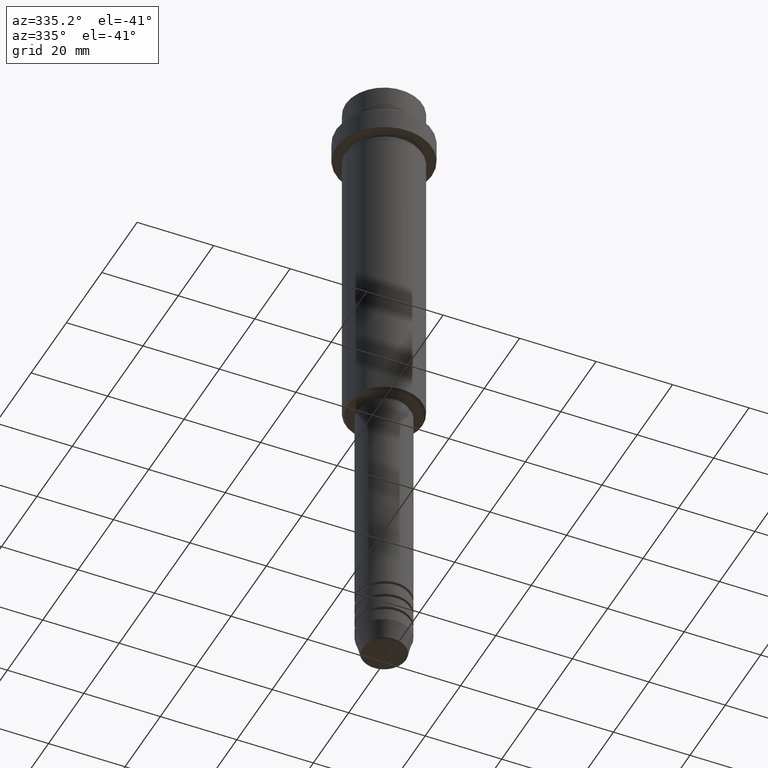
[diagram: clean part render]
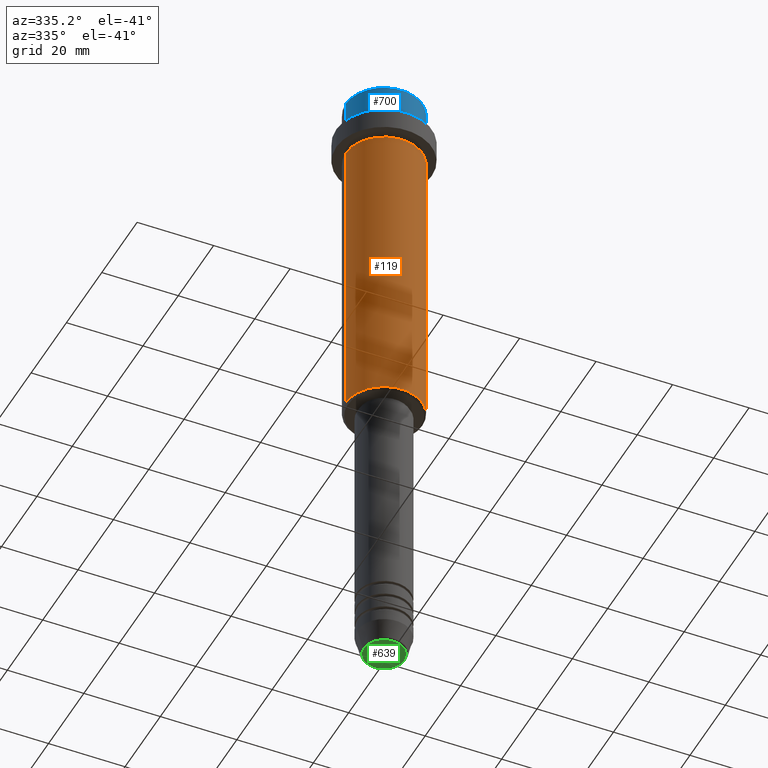
[diagram: same view with three faces highlighted in distinct colors, each labeled with its STEP entity id]
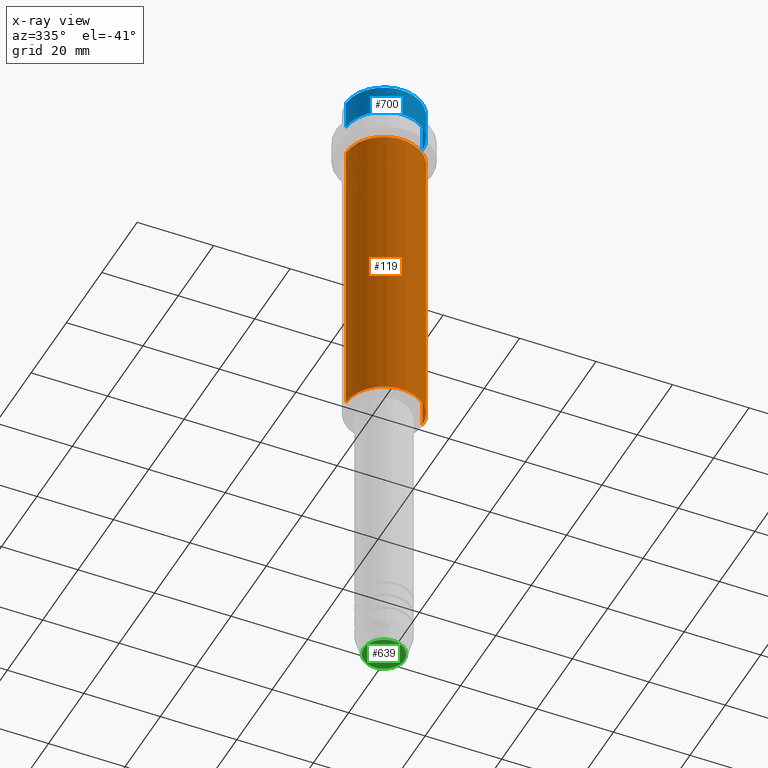
[diagram: x-ray of the same camera — body ghosted, the three highlighted faces saturated]
A machine part, auxiliary view with three faces highlighted in distinct colors.
The next image is the same camera in x-ray (body ghosted, the three faces saturated) — at least one of them is partly hidden behind the body in this view.
Their STEP definitions:

[orange] entity #119 — the highlighted cylindrical surface (partial cylindrical patch) has radius 10 mm, axis along (-0, -0, 1).
#48 = VERTEX_POINT ( 'NONE', #396 ) ;
#65 = ORIENTED_EDGE ( 'NONE', *, *, #490, .F. ) ;
#71 = LINE ( 'NONE', #166, #1163 ) ;
#77 = CARTESIAN_POINT ( 'NONE',  ( 0.000000000000000000, 0.000000000000000000, -16.00000000000000000 ) ) ;
#110 = LINE ( 'NONE', #864, #1141 ) ;
#119 = ADVANCED_FACE ( 'NONE', ( #499 ), #812, .T. ) ;
#166 = CARTESIAN_POINT ( 'NONE',  ( -10.00000000000000000, 1.224646799147353256E-15, 0.000000000000000000 ) ) ;
#227 = EDGE_CURVE ( 'NONE', #1382, #1175, #110, .T. ) ;
#276 = CARTESIAN_POINT ( 'NONE',  ( 0.000000000000000000, 0.000000000000000000, 0.000000000000000000 ) ) ;
#396 = CARTESIAN_POINT ( 'NONE',  ( -10.00000000000000000, 1.224646799147353256E-15, -94.49999999999997158 ) ) ;
#404 = CARTESIAN_POINT ( 'NONE',  ( -10.00000000000000000, 1.224646799147353256E-15, -16.00000000000000000 ) ) ;
#450 = CARTESIAN_POINT ( 'NONE',  ( 0.000000000000000000, 0.000000000000000000, -94.49999999999997158 ) ) ;
#490 = EDGE_CURVE ( 'NONE', #48, #1109, #71, .T. ) ;
#499 = FACE_OUTER_BOUND ( 'NONE', #1143, .T. ) ;
#513 = DIRECTION ( 'NONE',  ( -0.000000000000000000, -0.000000000000000000, 1.000000000000000000 ) ) ;
#520 = CARTESIAN_POINT ( 'NONE',  ( 10.00000000000000000, 0.000000000000000000, -16.00000000000000000 ) ) ;
#535 = DIRECTION ( 'NONE',  ( -0.000000000000000000, -0.000000000000000000, 1.000000000000000000 ) ) ;
#541 = AXIS2_PLACEMENT_3D ( 'NONE', #450, #675, #1122 ) ;
#579 = ORIENTED_EDGE ( 'NONE', *, *, #726, .T. ) ;
#599 = DIRECTION ( 'NONE',  ( -0.000000000000000000, -0.000000000000000000, 1.000000000000000000 ) ) ;
#614 = CIRCLE ( 'NONE', #541, 10.00000000000000000 ) ;
#675 = DIRECTION ( 'NONE',  ( -0.000000000000000000, -0.000000000000000000, 1.000000000000000000 ) ) ;
#721 = ORIENTED_EDGE ( 'NONE', *, *, #227, .T. ) ;
#726 = EDGE_CURVE ( 'NONE', #48, #1382, #614, .T. ) ;
#812 = CYLINDRICAL_SURFACE ( 'NONE', #1206, 10.00000000000000000 ) ;
#863 = DIRECTION ( 'NONE',  ( 1.000000000000000000, 0.000000000000000000, 0.000000000000000000 ) ) ;
#864 = CARTESIAN_POINT ( 'NONE',  ( 10.00000000000000000, 0.000000000000000000, 0.000000000000000000 ) ) ;
#947 = DIRECTION ( 'NONE',  ( -0.000000000000000000, -0.000000000000000000, 1.000000000000000000 ) ) ;
#954 = CARTESIAN_POINT ( 'NONE',  ( 10.00000000000000000, 0.000000000000000000, -94.49999999999997158 ) ) ;
#1019 = ORIENTED_EDGE ( 'NONE', *, *, #1084, .F. ) ;
#1039 = DIRECTION ( 'NONE',  ( 1.000000000000000000, 0.000000000000000000, 0.000000000000000000 ) ) ;
#1048 = AXIS2_PLACEMENT_3D ( 'NONE', #77, #513, #863 ) ;
#1084 = EDGE_CURVE ( 'NONE', #1109, #1175, #1296, .T. ) ;
#1109 = VERTEX_POINT ( 'NONE', #404 ) ;
#1122 = DIRECTION ( 'NONE',  ( -1.000000000000000000, 0.000000000000000000, 0.000000000000000000 ) ) ;
#1141 = VECTOR ( 'NONE', #535, 1000.000000000000000 ) ;
#1143 = EDGE_LOOP ( 'NONE', ( #65, #579, #721, #1019 ) ) ;
#1163 = VECTOR ( 'NONE', #947, 1000.000000000000000 ) ;
#1175 = VERTEX_POINT ( 'NONE', #520 ) ;
#1206 = AXIS2_PLACEMENT_3D ( 'NONE', #276, #599, #1039 ) ;
#1296 = CIRCLE ( 'NONE', #1048, 10.00000000000000000 ) ;
#1382 = VERTEX_POINT ( 'NONE', #954 ) ;

[blue] entity #700 — the highlighted cylindrical surface (partial cylindrical patch) has radius 10 mm, axis along (-0, -0, 1).
#6 = VERTEX_POINT ( 'NONE', #782 ) ;
#30 = FACE_OUTER_BOUND ( 'NONE', #51, .T. ) ;
#41 = DIRECTION ( 'NONE',  ( -0.000000000000000000, -0.000000000000000000, 1.000000000000000000 ) ) ;
#51 = EDGE_LOOP ( 'NONE', ( #1123, #967, #265, #552 ) ) ;
#73 = VERTEX_POINT ( 'NONE', #617 ) ;
#75 = VERTEX_POINT ( 'NONE', #1270 ) ;
#142 = CARTESIAN_POINT ( 'NONE',  ( 0.000000000000000000, 0.000000000000000000, -0.4999999999999692468 ) ) ;
#147 = AXIS2_PLACEMENT_3D ( 'NONE', #805, #41, #364 ) ;
#150 = CARTESIAN_POINT ( 'NONE',  ( 0.000000000000000000, 0.000000000000000000, -7.999999999999998224 ) ) ;
#208 = LINE ( 'NONE', #651, #891 ) ;
#212 = EDGE_CURVE ( 'NONE', #75, #1015, #528, .T. ) ;
#241 = AXIS2_PLACEMENT_3D ( 'NONE', #150, #348, #594 ) ;
#265 = ORIENTED_EDGE ( 'NONE', *, *, #212, .T. ) ;
#348 = DIRECTION ( 'NONE',  ( -0.000000000000000000, -0.000000000000000000, 1.000000000000000000 ) ) ;
#364 = DIRECTION ( 'NONE',  ( 1.000000000000000000, 0.000000000000000000, 0.000000000000000000 ) ) ;
#528 = LINE ( 'NONE', #1194, #1041 ) ;
#552 = ORIENTED_EDGE ( 'NONE', *, *, #811, .T. ) ;
#583 = CYLINDRICAL_SURFACE ( 'NONE', #147, 9.999999999999998224 ) ;
#590 = CIRCLE ( 'NONE', #241, 9.999999999999998224 ) ;
#594 = DIRECTION ( 'NONE',  ( 1.000000000000000000, 0.000000000000000000, 0.000000000000000000 ) ) ;
#617 = CARTESIAN_POINT ( 'NONE',  ( -9.999999999999998224, 1.224646799147353059E-15, -7.999999999999998224 ) ) ;
#651 = CARTESIAN_POINT ( 'NONE',  ( -9.999999999999998224, 1.224646799147353059E-15, 0.000000000000000000 ) ) ;
#685 = CARTESIAN_POINT ( 'NONE',  ( 9.999999999999998224, 0.000000000000000000, -0.4999999999999692468 ) ) ;
#686 = CIRCLE ( 'NONE', #865, 9.999999999999998224 ) ;
#700 = ADVANCED_FACE ( 'NONE', ( #30 ), #583, .T. ) ;
#782 = CARTESIAN_POINT ( 'NONE',  ( -9.999999999999998224, 1.224646799147353059E-15, -0.4999999999999692468 ) ) ;
#805 = CARTESIAN_POINT ( 'NONE',  ( 0.000000000000000000, 0.000000000000000000, 0.000000000000000000 ) ) ;
#811 = EDGE_CURVE ( 'NONE', #1015, #6, #686, .T. ) ;
#823 = EDGE_CURVE ( 'NONE', #73, #75, #590, .T. ) ;
#865 = AXIS2_PLACEMENT_3D ( 'NONE', #142, #1102, #1024 ) ;
#891 = VECTOR ( 'NONE', #1090, 1000.000000000000000 ) ;
#967 = ORIENTED_EDGE ( 'NONE', *, *, #823, .T. ) ;
#999 = EDGE_CURVE ( 'NONE', #73, #6, #208, .T. ) ;
#1015 = VERTEX_POINT ( 'NONE', #685 ) ;
#1024 = DIRECTION ( 'NONE',  ( 1.000000000000000000, 0.000000000000000000, 0.000000000000000000 ) ) ;
#1041 = VECTOR ( 'NONE', #1415, 1000.000000000000000 ) ;
#1090 = DIRECTION ( 'NONE',  ( -0.000000000000000000, -0.000000000000000000, 1.000000000000000000 ) ) ;
#1102 = DIRECTION ( 'NONE',  ( 0.000000000000000000, 0.000000000000000000, -1.000000000000000000 ) ) ;
#1123 = ORIENTED_EDGE ( 'NONE', *, *, #999, .F. ) ;
#1194 = CARTESIAN_POINT ( 'NONE',  ( 9.999999999999998224, 0.000000000000000000, 0.000000000000000000 ) ) ;
#1270 = CARTESIAN_POINT ( 'NONE',  ( 9.999999999999998224, 0.000000000000000000, -7.999999999999998224 ) ) ;
#1415 = DIRECTION ( 'NONE',  ( -0.000000000000000000, -0.000000000000000000, 1.000000000000000000 ) ) ;

[green] entity #639 — the highlighted planar face has unit normal (0, -0, 1).
#21 = DIRECTION ( 'NONE',  ( 1.000000000000000000, 0.000000000000000000, 0.000000000000000000 ) ) ;
#100 = DIRECTION ( 'NONE',  ( 0.000000000000000000, 0.000000000000000000, -1.000000000000000000 ) ) ;
#157 = VERTEX_POINT ( 'NONE', #1259 ) ;
#205 = CARTESIAN_POINT ( 'NONE',  ( 0.000000000000000000, 0.000000000000000000, -169.9999999999999716 ) ) ;
#305 = DIRECTION ( 'NONE',  ( 1.000000000000000000, 0.000000000000000000, 0.000000000000000000 ) ) ;
#471 = CIRCLE ( 'NONE', #567, 5.276590543854905668 ) ;
#475 = ORIENTED_EDGE ( 'NONE', *, *, #1214, .T. ) ;
#500 = VERTEX_POINT ( 'NONE', #708 ) ;
#556 = DIRECTION ( 'NONE',  ( 0.000000000000000000, -0.000000000000000000, 1.000000000000000000 ) ) ;
#567 = AXIS2_PLACEMENT_3D ( 'NONE', #205, #100, #1414 ) ;
#639 = ADVANCED_FACE ( 'NONE', ( #1238 ), #689, .F. ) ;
#689 = PLANE ( 'NONE',  #1231 ) ;
#706 = AXIS2_PLACEMENT_3D ( 'NONE', #1193, #1096, #305 ) ;
#708 = CARTESIAN_POINT ( 'NONE',  ( 5.276590543854905668, 0.000000000000000000, -169.9999999999999716 ) ) ;
#966 = ORIENTED_EDGE ( 'NONE', *, *, #1200, .T. ) ;
#1096 = DIRECTION ( 'NONE',  ( 0.000000000000000000, 0.000000000000000000, -1.000000000000000000 ) ) ;
#1193 = CARTESIAN_POINT ( 'NONE',  ( 0.000000000000000000, 0.000000000000000000, -169.9999999999999716 ) ) ;
#1200 = EDGE_CURVE ( 'NONE', #157, #500, #1255, .T. ) ;
#1214 = EDGE_CURVE ( 'NONE', #500, #157, #471, .T. ) ;
#1231 = AXIS2_PLACEMENT_3D ( 'NONE', #1243, #556, #21 ) ;
#1238 = FACE_OUTER_BOUND ( 'NONE', #1246, .T. ) ;
#1243 = CARTESIAN_POINT ( 'NONE',  ( 0.000000000000000000, 0.000000000000000000, -169.9999999999999716 ) ) ;
#1246 = EDGE_LOOP ( 'NONE', ( #475, #966 ) ) ;
#1255 = CIRCLE ( 'NONE', #706, 5.276590543854905668 ) ;
#1259 = CARTESIAN_POINT ( 'NONE',  ( -5.276590543854905668, 6.757689212787771832E-16, -169.9999999999999716 ) ) ;
#1414 = DIRECTION ( 'NONE',  ( 1.000000000000000000, 0.000000000000000000, 0.000000000000000000 ) ) ;